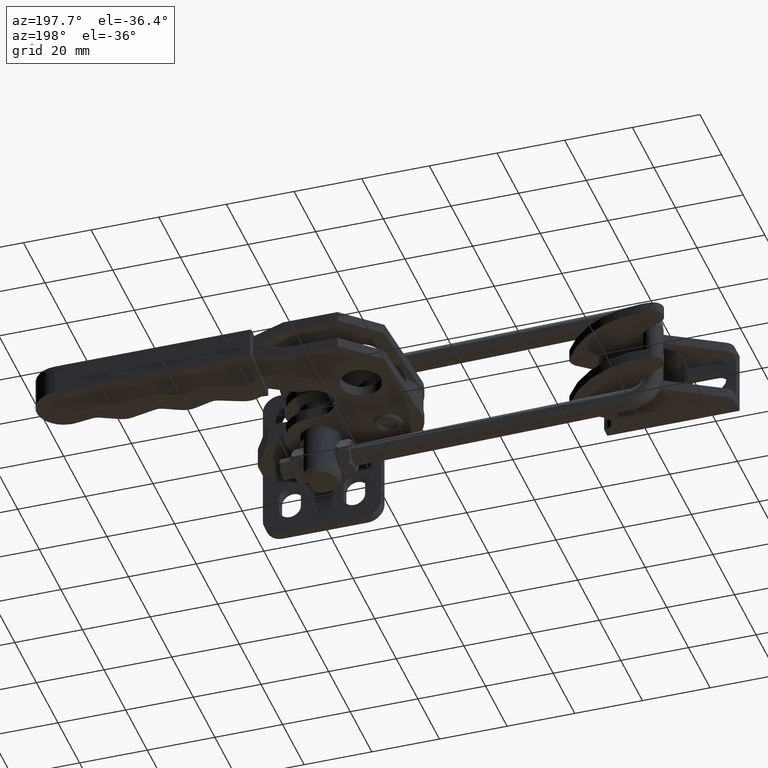
[diagram: clean part render]
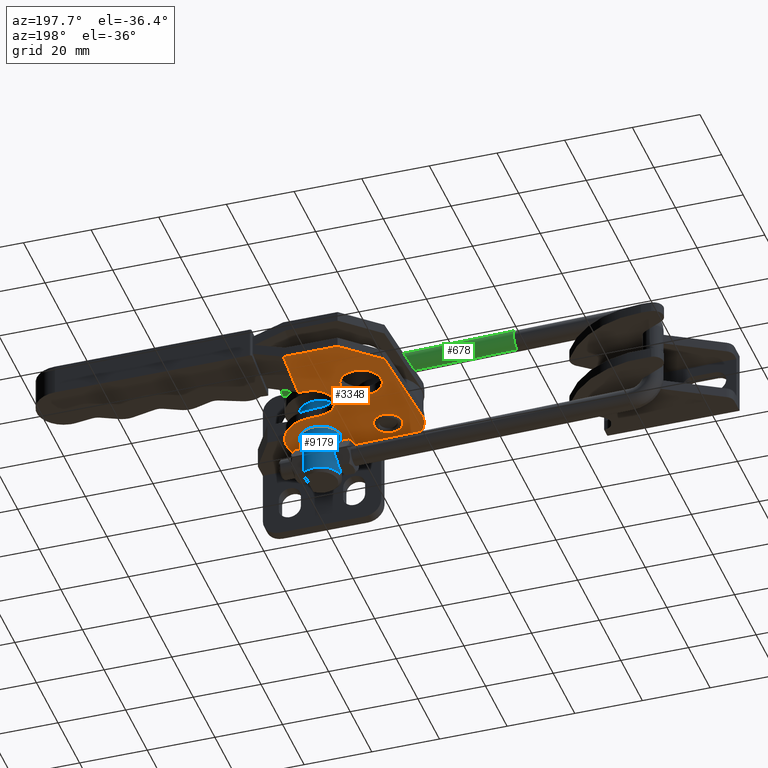
[diagram: same view with three faces highlighted in distinct colors, each labeled with its STEP entity id]
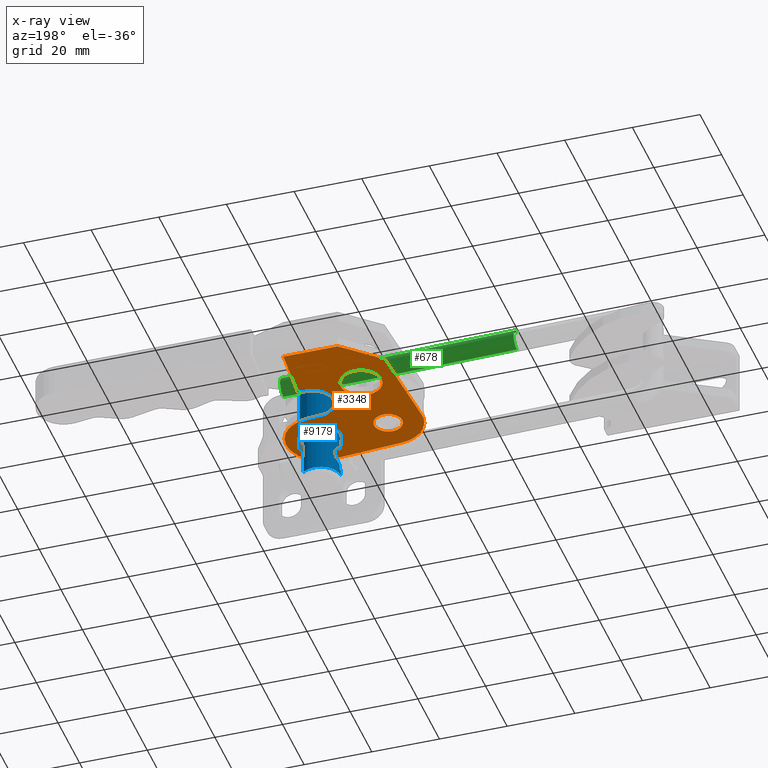
[diagram: x-ray of the same camera — body ghosted, the three highlighted faces saturated]
A machine part, auxiliary view with three faces highlighted in distinct colors.
The next image is the same camera in x-ray (body ghosted, the three faces saturated) — at least one of them is partly hidden behind the body in this view.
Their STEP definitions:

[orange] entity #3348 — the highlighted planar face has unit normal (-0, -0, 1).
#90 = DIRECTION ( 'NONE',  ( 1.000000000000000000, 0.0000000000000000000, 0.0000000000000000000 ) ) ;
#109 = EDGE_CURVE ( 'NONE', #5961, #9636, #665, .T. ) ;
#111 = AXIS2_PLACEMENT_3D ( 'NONE', #3884, #7044, #263 ) ;
#136 = EDGE_CURVE ( 'NONE', #8823, #1485, #8167, .T. ) ;
#139 = FACE_BOUND ( 'NONE', #1889, .T. ) ;
#263 = DIRECTION ( 'NONE',  ( 0.9975775685567006600, 0.06956288315259118200, 3.826595902890073400E-015 ) ) ;
#317 = DIRECTION ( 'NONE',  ( 0.9975775685567006600, 0.06956288315259139000, 3.903127820947813600E-015 ) ) ;
#550 = EDGE_CURVE ( 'NONE', #3615, #8410, #8880, .T. ) ;
#557 = DIRECTION ( 'NONE',  ( 0.9975775685567006600, 0.06956288315259139000, 0.0000000000000000000 ) ) ;
#584 = CARTESIAN_POINT ( 'NONE',  ( -40.62499338306440000, 59.01843283864303700, -6.000000000000619900 ) ) ;
#588 = CARTESIAN_POINT ( 'NONE',  ( -12.57801332633600900, 19.37342431990673600, -6.000000000000584400 ) ) ;
#645 = VECTOR ( 'NONE', #766, 1000.000000000000100 ) ;
#665 = CIRCLE ( 'NONE', #7178, 10.20000000000010200 ) ;
#752 = CIRCLE ( 'NONE', #7820, 4.150000000000001200 ) ;
#766 = DIRECTION ( 'NONE',  ( -0.9975315770320198900, 0.07021931944992977600, 4.455608541071312700E-017 ) ) ;
#783 = CARTESIAN_POINT ( 'NONE',  ( -47.68420013545501500, 40.13003086025399600, -6.000000000000651000 ) ) ;
#870 = EDGE_CURVE ( 'NONE', #5961, #5231, #6050, .T. ) ;
#885 = EDGE_CURVE ( 'NONE', #3882, #5231, #4031, .T. ) ;
#901 = VERTEX_POINT ( 'NONE', #584 ) ;
#1033 = EDGE_CURVE ( 'NONE', #901, #4184, #9133, .T. ) ;
#1049 = VERTEX_POINT ( 'NONE', #3193 ) ;
#1120 = CARTESIAN_POINT ( 'NONE',  ( -43.15470053837935200, 20.10000000000001900, -6.000000000000502700 ) ) ;
#1122 = EDGE_CURVE ( 'NONE', #8608, #1049, #4837, .T. ) ;
#1216 = EDGE_CURVE ( 'NONE', #5598, #3131, #5927, .T. ) ;
#1339 = EDGE_CURVE ( 'NONE', #4115, #7196, #8255, .T. ) ;
#1446 = DIRECTION ( 'NONE',  ( -0.0000000000000000000, -0.0000000000000000000, 1.000000000000000000 ) ) ;
#1484 = AXIS2_PLACEMENT_3D ( 'NONE', #6221, #1742, #6985 ) ;
#1485 = VERTEX_POINT ( 'NONE', #9359 ) ;
#1531 = CARTESIAN_POINT ( 'NONE',  ( -24.66659128503268100, 60.13124100057230900, -6.000000000000558700 ) ) ;
#1742 = DIRECTION ( 'NONE',  ( -3.830904862913346100E-015, -2.676290181485771800E-016, 1.000000000000000000 ) ) ;
#1840 = CARTESIAN_POINT ( 'NONE',  ( -22.75330452561445700, 18.66388291175029600, -6.000000000000584400 ) ) ;
#1859 = DIRECTION ( 'NONE',  ( -0.0000000000000000000, -0.0000000000000000000, 1.000000000000000000 ) ) ;
#1861 = VERTEX_POINT ( 'NONE', #6468 ) ;
#1889 = EDGE_LOOP ( 'NONE', ( #3510, #9360 ) ) ;
#1903 = FACE_OUTER_BOUND ( 'NONE', #9615, .T. ) ;
#1926 = VECTOR ( 'NONE', #6203, 1000.000000000000000 ) ;
#1992 = EDGE_CURVE ( 'NONE', #2532, #3882, #3881, .T. ) ;
#2011 = LINE ( 'NONE', #6602, #7965 ) ;
#2013 = CARTESIAN_POINT ( 'NONE',  ( -23.37411291605752300, 41.59624977678884500, -6.000000000000558700 ) ) ;
#2075 = DIRECTION ( 'NONE',  ( -3.911374865068741500E-018, -7.658596074387203500E-019, 1.000000000000000000 ) ) ;
#2360 = CARTESIAN_POINT ( 'NONE',  ( -22.03706746722521000, 28.83870499747700200, -6.000000000000584400 ) ) ;
#2393 = DIRECTION ( 'NONE',  ( -0.7380754324015291700, -0.6747182049458097000, -3.008070933900506400E-015 ) ) ;
#2448 = DIRECTION ( 'NONE',  ( 0.9975775685567006600, 0.06956288315259139000, 0.0000000000000000000 ) ) ;
#2470 = ORIENTED_EDGE ( 'NONE', *, *, #3842, .F. ) ;
#2517 = VECTOR ( 'NONE', #8866, 1000.000000000000000 ) ;
#2532 = VERTEX_POINT ( 'NONE', #6469 ) ;
#2564 = DIRECTION ( 'NONE',  ( 0.9975775685567007700, 0.06956288315259147300, 0.0000000000000000000 ) ) ;
#2606 = CARTESIAN_POINT ( 'NONE',  ( -43.87093759676842800, 9.925177914273556100, -6.000000000000649300 ) ) ;
#2749 = CARTESIAN_POINT ( 'NONE',  ( -25.75251658630407900, 35.26546526873277500, -6.000000000000572000 ) ) ;
#2872 = DIRECTION ( 'NONE',  ( -0.9975315770320206700, 0.07021931944991934000, -3.802655841842144100E-015 ) ) ;
#2879 = DIRECTION ( 'NONE',  ( -0.06997983071326563400, -0.9975484064913053800, -5.350589743702479500E-016 ) ) ;
#2989 = ORIENTED_EDGE ( 'NONE', *, *, #4706, .F. ) ;
#3131 = VERTEX_POINT ( 'NONE', #9674 ) ;
#3193 = CARTESIAN_POINT ( 'NONE',  ( -26.18436540092118700, 29.13064606998591100, -6.000000000000584400 ) ) ;
#3348 = ADVANCED_FACE ( 'NONE', ( #139, #5872, #3854, #1903 ), #6952, .F. ) ;
#3381 = CIRCLE ( 'NONE', #5381, 10.19999999999984700 ) ;
#3489 = DIRECTION ( 'NONE',  ( 0.9975775685567005400, 0.06956288315259187600, 3.807929581412538700E-015 ) ) ;
#3510 = ORIENTED_EDGE ( 'NONE', *, *, #3830, .T. ) ;
#3518 = ORIENTED_EDGE ( 'NONE', *, *, #5346, .T. ) ;
#3615 = VERTEX_POINT ( 'NONE', #6692 ) ;
#3650 = CARTESIAN_POINT ( 'NONE',  ( -43.15470053837921700, 20.10000000000000900, -6.000000000000643900 ) ) ;
#3760 = DIRECTION ( 'NONE',  ( -3.911374865068741500E-018, -7.658596074387203500E-019, 1.000000000000000000 ) ) ;
#3810 = DIRECTION ( 'NONE',  ( -0.9999999749334683700, 0.0002239041369209021400, -3.830844843641524400E-015 ) ) ;
#3830 = EDGE_CURVE ( 'NONE', #1485, #8823, #6931, .T. ) ;
#3837 = CARTESIAN_POINT ( 'NONE',  ( -39.00470053837935300, 20.10000000000001900, -6.000000000000502700 ) ) ;
#3842 = EDGE_CURVE ( 'NONE', #9636, #8608, #4892, .T. ) ;
#3854 = FACE_BOUND ( 'NONE', #7180, .T. ) ;
#3881 = LINE ( 'NONE', #8225, #1926 ) ;
#3882 = VERTEX_POINT ( 'NONE', #7807 ) ;
#3884 = CARTESIAN_POINT ( 'NONE',  ( -43.15470053837921700, 20.10000000000000900, -6.000000000000643900 ) ) ;
#3951 = CIRCLE ( 'NONE', #8079, 6.000000000000003600 ) ;
#4031 = CIRCLE ( 'NONE', #111, 10.19999999999984700 ) ;
#4074 = CARTESIAN_POINT ( 'NONE',  ( -49.54468612885799700, 50.86441657701523400, -6.000000000000656400 ) ) ;
#4115 = VERTEX_POINT ( 'NONE', #8792 ) ;
#4184 = VERTEX_POINT ( 'NONE', #8168 ) ;
#4368 = CARTESIAN_POINT ( 'NONE',  ( -50.75078617634021300, 57.57561046590563300, -6.000000000000659000 ) ) ;
#4404 = DIRECTION ( 'NONE',  ( 0.9975775685567006600, 0.06956288315259118200, 3.826595902890073400E-015 ) ) ;
#4453 = DIRECTION ( 'NONE',  ( -3.830904862913346100E-015, -2.676290181485772300E-016, 1.000000000000000000 ) ) ;
#4486 = VERTEX_POINT ( 'NONE', #5526 ) ;
#4675 = ORIENTED_EDGE ( 'NONE', *, *, #885, .F. ) ;
#4706 = EDGE_CURVE ( 'NONE', #1861, #7196, #2011, .T. ) ;
#4758 = EDGE_CURVE ( 'NONE', #4184, #4486, #5734, .T. ) ;
#4767 = DIRECTION ( 'NONE',  ( -3.830904862913346100E-015, -2.676290181485772300E-016, 1.000000000000000000 ) ) ;
#4837 = LINE ( 'NONE', #2360, #645 ) ;
#4892 = CIRCLE ( 'NONE', #9718, 10.20000000000010200 ) ;
#5006 = DIRECTION ( 'NONE',  ( -3.911374865068741500E-018, -7.658596074387203500E-019, 1.000000000000000000 ) ) ;
#5010 = AXIS2_PLACEMENT_3D ( 'NONE', #2749, #7994, #3489 ) ;
#5092 = AXIS2_PLACEMENT_3D ( 'NONE', #8532, #2075, #2448 ) ;
#5104 = EDGE_LOOP ( 'NONE', ( #5269, #3518 ) ) ;
#5200 = CARTESIAN_POINT ( 'NONE',  ( -41.69873472411481400, 40.54740815916954200, -6.000000000000627100 ) ) ;
#5231 = VERTEX_POINT ( 'NONE', #2606 ) ;
#5269 = ORIENTED_EDGE ( 'NONE', *, *, #1216, .T. ) ;
#5346 = EDGE_CURVE ( 'NONE', #3131, #5598, #3951, .T. ) ;
#5381 = AXIS2_PLACEMENT_3D ( 'NONE', #3650, #8932, #4404 ) ;
#5417 = ORIENTED_EDGE ( 'NONE', *, *, #1339, .T. ) ;
#5526 = CARTESIAN_POINT ( 'NONE',  ( -53.32969428459037400, 20.81379427327530300, -6.000000000000679500 ) ) ;
#5560 = VECTOR ( 'NONE', #2393, 1000.000000000000100 ) ;
#5564 = VECTOR ( 'NONE', #3810, 1000.000000000000100 ) ;
#5598 = VERTEX_POINT ( 'NONE', #8303 ) ;
#5711 = ORIENTED_EDGE ( 'NONE', *, *, #4758, .F. ) ;
#5724 = ORIENTED_EDGE ( 'NONE', *, *, #1122, .F. ) ;
#5728 = ORIENTED_EDGE ( 'NONE', *, *, #109, .F. ) ;
#5734 = LINE ( 'NONE', #4368, #9589 ) ;
#5872 = FACE_BOUND ( 'NONE', #5104, .T. ) ;
#5927 = CIRCLE ( 'NONE', #5092, 6.000000000000003600 ) ;
#5961 = VERTEX_POINT ( 'NONE', #8130 ) ;
#6050 = LINE ( 'NONE', #8148, #7794 ) ;
#6203 = DIRECTION ( 'NONE',  ( 0.06956288315259134800, -0.9975775685567007700, -4.919178523397262900E-019 ) ) ;
#6221 = CARTESIAN_POINT ( 'NONE',  ( -56.01753997961422700, 57.94508280144665200, -6.000000000000679500 ) ) ;
#6336 = CARTESIAN_POINT ( 'NONE',  ( -43.15470053837935200, 20.10000000000001900, -6.000000000000502700 ) ) ;
#6468 = CARTESIAN_POINT ( 'NONE',  ( -26.18032831769255600, 41.40056731535641900, -6.000000000000572000 ) ) ;
#6469 = CARTESIAN_POINT ( 'NONE',  ( -53.33865764381501200, 19.52814540777979200, -6.000000000000679500 ) ) ;
#6602 = CARTESIAN_POINT ( 'NONE',  ( -54.72506161063907400, 39.41009157766318800, -6.000000000000679500 ) ) ;
#6692 = CARTESIAN_POINT ( 'NONE',  ( -47.30470053837935000, 20.10000000000001900, -6.000000000000502700 ) ) ;
#6704 = AXIS2_PLACEMENT_3D ( 'NONE', #5200, #4453, #8989 ) ;
#6749 = EDGE_CURVE ( 'NONE', #4115, #901, #7563, .T. ) ;
#6836 = CARTESIAN_POINT ( 'NONE',  ( -56.01729888043105600, 59.02187923960703800, -6.000000000000679500 ) ) ;
#6931 = CIRCLE ( 'NONE', #7720, 6.000000000000003600 ) ;
#6936 = ORIENTED_EDGE ( 'NONE', *, *, #1033, .F. ) ;
#6952 = PLANE ( 'NONE',  #1484 ) ;
#6975 = ORIENTED_EDGE ( 'NONE', *, *, #1992, .F. ) ;
#6985 = DIRECTION ( 'NONE',  ( 0.9975775685567007700, 0.06956288315259134800, 3.840241804634849600E-015 ) ) ;
#7044 = DIRECTION ( 'NONE',  ( -3.830904862913346100E-015, -2.676290181485772300E-016, 1.000000000000000000 ) ) ;
#7071 = DIRECTION ( 'NONE',  ( -3.911374865068741500E-018, -7.658596074387203500E-019, 1.000000000000000000 ) ) ;
#7095 = DIRECTION ( 'NONE',  ( 1.000000000000000000, 0.0000000000000000000, 0.0000000000000000000 ) ) ;
#7178 = AXIS2_PLACEMENT_3D ( 'NONE', #9059, #3760, #8265 ) ;
#7180 = EDGE_LOOP ( 'NONE', ( #9239, #7184 ) ) ;
#7184 = ORIENTED_EDGE ( 'NONE', *, *, #550, .T. ) ;
#7196 = VERTEX_POINT ( 'NONE', #2013 ) ;
#7269 = ORIENTED_EDGE ( 'NONE', *, *, #6749, .F. ) ;
#7342 = DIRECTION ( 'NONE',  ( 0.9975775685567007700, 0.06956288315259134800, 3.840241804634849600E-015 ) ) ;
#7499 = AXIS2_PLACEMENT_3D ( 'NONE', #1120, #1446, #90 ) ;
#7563 = LINE ( 'NONE', #6836, #5564 ) ;
#7720 = AXIS2_PLACEMENT_3D ( 'NONE', #9345, #4767, #317 ) ;
#7794 = VECTOR ( 'NONE', #2872, 1000.000000000000000 ) ;
#7807 = CARTESIAN_POINT ( 'NONE',  ( -53.31946439506256000, 19.25290157722756800, -6.000000000000679500 ) ) ;
#7816 = CARTESIAN_POINT ( 'NONE',  ( -22.03706746722521000, 28.83870499747700200, -6.000000000000584400 ) ) ;
#7820 = AXIS2_PLACEMENT_3D ( 'NONE', #6336, #1859, #7095 ) ;
#7965 = VECTOR ( 'NONE', #7342, 1000.000000000000000 ) ;
#7994 = DIRECTION ( 'NONE',  ( -3.830904862913346100E-015, -2.676290181485772300E-016, 1.000000000000000000 ) ) ;
#8014 = EDGE_CURVE ( 'NONE', #8410, #3615, #752, .T. ) ;
#8079 = AXIS2_PLACEMENT_3D ( 'NONE', #9626, #5006, #557 ) ;
#8130 = CARTESIAN_POINT ( 'NONE',  ( -23.46954158400364700, 8.489060826023584000, -6.000000000000585300 ) ) ;
#8148 = CARTESIAN_POINT ( 'NONE',  ( -59.32124978962197300, 11.01277296635094800, -6.000000000000704300 ) ) ;
#8167 = CIRCLE ( 'NONE', #6704, 6.000000000000003600 ) ;
#8168 = CARTESIAN_POINT ( 'NONE',  ( -51.33649728118356800, 49.22641651465672700, -6.000000000000663500 ) ) ;
#8225 = CARTESIAN_POINT ( 'NONE',  ( -56.01753997961422700, 57.94508280144665200, -6.000000000000679500 ) ) ;
#8255 = LINE ( 'NONE', #1531, #2517 ) ;
#8265 = DIRECTION ( 'NONE',  ( 0.9975775685567007700, 0.06956288315259147300, 0.0000000000000000000 ) ) ;
#8303 = CARTESIAN_POINT ( 'NONE',  ( -16.76783911427424900, 19.08126021066584600, -6.000000000000584400 ) ) ;
#8410 = VERTEX_POINT ( 'NONE', #3837 ) ;
#8532 = CARTESIAN_POINT ( 'NONE',  ( -22.75330452561445700, 18.66388291175029600, -6.000000000000584400 ) ) ;
#8551 = CIRCLE ( 'NONE', #5010, 6.149999999999943500 ) ;
#8608 = VERTEX_POINT ( 'NONE', #7816 ) ;
#8792 = CARTESIAN_POINT ( 'NONE',  ( -24.58874278694210600, 59.01484225570386100, -6.000000000000558700 ) ) ;
#8823 = VERTEX_POINT ( 'NONE', #783 ) ;
#8866 = DIRECTION ( 'NONE',  ( 0.06956288315259134800, -0.9975775685567007700, -4.919178523397262900E-019 ) ) ;
#8880 = CIRCLE ( 'NONE', #7499, 4.150000000000001200 ) ;
#8891 = ORIENTED_EDGE ( 'NONE', *, *, #9354, .F. ) ;
#8932 = DIRECTION ( 'NONE',  ( -3.830904862913346100E-015, -2.676290181485772300E-016, 1.000000000000000000 ) ) ;
#8989 = DIRECTION ( 'NONE',  ( 0.9975775685567006600, 0.06956288315259139000, 3.903127820947813600E-015 ) ) ;
#9059 = CARTESIAN_POINT ( 'NONE',  ( -22.75330452561445700, 18.66388291175029600, -6.000000000000584400 ) ) ;
#9110 = ORIENTED_EDGE ( 'NONE', *, *, #9270, .T. ) ;
#9133 = LINE ( 'NONE', #4074, #5560 ) ;
#9213 = ORIENTED_EDGE ( 'NONE', *, *, #870, .T. ) ;
#9239 = ORIENTED_EDGE ( 'NONE', *, *, #8014, .T. ) ;
#9270 = EDGE_CURVE ( 'NONE', #1861, #1049, #8551, .T. ) ;
#9345 = CARTESIAN_POINT ( 'NONE',  ( -41.69873472411481400, 40.54740815916954200, -6.000000000000627100 ) ) ;
#9354 = EDGE_CURVE ( 'NONE', #4486, #2532, #3381, .T. ) ;
#9359 = CARTESIAN_POINT ( 'NONE',  ( -35.71326931277460700, 40.96478545808509600, -6.000000000000604000 ) ) ;
#9360 = ORIENTED_EDGE ( 'NONE', *, *, #136, .T. ) ;
#9589 = VECTOR ( 'NONE', #2879, 1000.000000000000100 ) ;
#9615 = EDGE_LOOP ( 'NONE', ( #9110, #5724, #2470, #5728, #9213, #4675, #6975, #8891, #5711, #6936, #7269, #5417, #2989 ) ) ;
#9626 = CARTESIAN_POINT ( 'NONE',  ( -22.75330452561445700, 18.66388291175029600, -6.000000000000584400 ) ) ;
#9636 = VERTEX_POINT ( 'NONE', #588 ) ;
#9674 = CARTESIAN_POINT ( 'NONE',  ( -28.73876993695466500, 18.24650561283474900, -6.000000000000584400 ) ) ;
#9718 = AXIS2_PLACEMENT_3D ( 'NONE', #1840, #7071, #2564 ) ;

[blue] entity #9179 — the highlighted cylindrical surface (edge-blend (fillet) strip) has radius 6 mm, axis along (-0, -0, 1).
#7 = VERTEX_POINT ( 'NONE', #4825 ) ;
#16 = DIRECTION ( 'NONE',  ( -0.02058254326521278400, -0.9997881570176433400, -2.891205793294676400E-016 ) ) ;
#42 = EDGE_CURVE ( 'NONE', #2114, #8886, #7578, .T. ) ;
#47 = ORIENTED_EDGE ( 'NONE', *, *, #4352, .T. ) ;
#137 = VERTEX_POINT ( 'NONE', #5264 ) ;
#177 = CARTESIAN_POINT ( 'NONE',  ( -22.75330452561465200, 18.66388291175007600, 9.919872981077089600 ) ) ;
#184 = CARTESIAN_POINT ( 'NONE',  ( -27.97551314054183200, 21.62150815981607000, -15.23337005052107600 ) ) ;
#218 = CARTESIAN_POINT ( 'NONE',  ( -28.53067503351389800, 20.28313891820984300, 16.84807621135263000 ) ) ;
#286 = CARTESIAN_POINT ( 'NONE',  ( -19.25227122585774700, 23.53653781785551000, -8.750000000000612800 ) ) ;
#293 = EDGE_CURVE ( 'NONE', #4925, #6559, #7005, .T. ) ;
#320 = CARTESIAN_POINT ( 'NONE',  ( -28.30828915554414500, 20.93387042247410400, 12.15804558808479500 ) ) ;
#345 = CARTESIAN_POINT ( 'NONE',  ( -28.33664920723994400, 20.86333766239055300, 16.41276888665086600 ) ) ;
#415 = CARTESIAN_POINT ( 'NONE',  ( -28.56208447569579800, 20.17107264567027200, 16.91313724639640600 ) ) ;
#474 = EDGE_CURVE ( 'NONE', #4358, #9285, #7465, .T. ) ;
#490 = DIRECTION ( 'NONE',  ( -3.911366218132177800E-018, -7.658619818455770700E-019, 1.000000000000000000 ) ) ;
#544 = CARTESIAN_POINT ( 'NONE',  ( -28.71145928351231900, 19.37736984406372200, -9.938322231437672000 ) ) ;
#566 = CARTESIAN_POINT ( 'NONE',  ( -28.75203346772051600, 18.78737817134133100, 18.58012701892147300 ) ) ;
#602 = CARTESIAN_POINT ( 'NONE',  ( -22.75330452561465200, 18.66388291175007600, 18.58012701892147300 ) ) ;
#604 = AXIS2_PLACEMENT_3D ( 'NONE', #1610, #4989, #4083 ) ;
#614 = CARTESIAN_POINT ( 'NONE',  ( -28.68613414002017900, 19.55916653520847200, 21.24999999999930700 ) ) ;
#642 = EDGE_LOOP ( 'NONE', ( #1121, #8599, #9526, #9249, #6270, #3781, #6988, #3299, #47, #7327, #5181, #3987, #4001, #1160, #7952, #1788, #6031, #7509, #2579, #8093, #8935, #5978, #7406, #9443, #3947, #4296 ) ) ;
#741 = DIRECTION ( 'NONE',  ( -3.911366218132177800E-018, -7.658619818455770700E-019, 1.000000000000000000 ) ) ;
#889 = CARTESIAN_POINT ( 'NONE',  ( -28.75203346772051200, 18.78737817134133100, -20.25000000000059000 ) ) ;
#902 = EDGE_CURVE ( 'NONE', #2197, #4480, #1844, .T. ) ;
#916 = DIRECTION ( 'NONE',  ( -8.095376221225097100E-015, 1.000000000000000000, -1.445602896647338700E-015 ) ) ;
#921 = CARTESIAN_POINT ( 'NONE',  ( -27.87864492948116900, 21.78366700516243200, -14.34967787659975100 ) ) ;
#1001 = EDGE_CURVE ( 'NONE', #6559, #2325, #5076, .T. ) ;
#1027 = DIRECTION ( 'NONE',  ( -4.510281037539698400E-017, -2.664535259100375700E-015, -1.000000000000000000 ) ) ;
#1070 = CARTESIAN_POINT ( 'NONE',  ( -28.18661546363772500, 21.21080109765690800, 12.49096918780960800 ) ) ;
#1091 = VECTOR ( 'NONE', #6239, 1000.000000000000000 ) ;
#1102 = CARTESIAN_POINT ( 'NONE',  ( -28.45691415536948900, 20.53025170346548500, 16.69208773683557100 ) ) ;
#1121 = ORIENTED_EDGE ( 'NONE', *, *, #293, .F. ) ;
#1160 = ORIENTED_EDGE ( 'NONE', *, *, #1904, .T. ) ;
#1210 = VERTEX_POINT ( 'NONE', #889 ) ;
#1287 = DIRECTION ( 'NONE',  ( -3.911366218132177800E-018, -7.658619818455770700E-019, 1.000000000000000000 ) ) ;
#1335 = CIRCLE ( 'NONE', #6884, 6.000000000000004400 ) ;
#1363 = DIRECTION ( 'NONE',  ( 0.0000000000000000000, -1.000000000000000000, 1.734723475976806100E-015 ) ) ;
#1371 = CARTESIAN_POINT ( 'NONE',  ( -16.75457558350878900, 18.54038765215882000, 21.24999999999930700 ) ) ;
#1396 = CARTESIAN_POINT ( 'NONE',  ( -28.68613414002017600, 19.55916653520848700, -18.50978854942939500 ) ) ;
#1448 = VERTEX_POINT ( 'NONE', #286 ) ;
#1449 = B_SPLINE_CURVE_WITH_KNOTS ( 'NONE', 3,
 ( #4347, #3560, #5874, #1396 ),
 .UNSPECIFIED., .F., .F.,
 ( 4, 4 ),
 ( 0.004354289543956653100, 0.004636271427438312100 ),
 .UNSPECIFIED. ) ;
#1486 = VECTOR ( 'NONE', #5651, 1000.000000000000000 ) ;
#1494 = VECTOR ( 'NONE', #1287, 1000.000000000000000 ) ;
#1610 = CARTESIAN_POINT ( 'NONE',  ( -22.75330452561465200, 18.66388291175007600, 8.749999999999385400 ) ) ;
#1659 = CARTESIAN_POINT ( 'NONE',  ( -28.57933611543608200, 20.12116649960782800, -16.95145594813587700 ) ) ;
#1689 = CARTESIAN_POINT ( 'NONE',  ( -27.94070026961157500, 21.67953951307806500, -13.45585914026406400 ) ) ;
#1695 = AXIS2_PLACEMENT_3D ( 'NONE', #3000, #8237, #3730 ) ;
#1760 = DIRECTION ( 'NONE',  ( -3.911366218132177800E-018, -7.658619818455770700E-019, 1.000000000000000000 ) ) ;
#1788 = ORIENTED_EDGE ( 'NONE', *, *, #7997, .T. ) ;
#1826 = DIRECTION ( 'NONE',  ( -3.911366218132177800E-018, -7.658619818455770700E-019, 1.000000000000000000 ) ) ;
#1842 = CARTESIAN_POINT ( 'NONE',  ( -28.07327185561293700, 21.43925677651230200, 12.86510755839137900 ) ) ;
#1844 = LINE ( 'NONE', #614, #9668 ) ;
#1868 = CARTESIAN_POINT ( 'NONE',  ( -28.53067503351389800, 20.28313891820984300, 16.84807621135263000 ) ) ;
#1904 = EDGE_CURVE ( 'NONE', #2114, #7287, #9109, .T. ) ;
#1909 = CARTESIAN_POINT ( 'NONE',  ( -28.68613414002011200, 19.55916653520892000, 21.24999999999930700 ) ) ;
#1999 = LINE ( 'NONE', #8015, #5484 ) ;
#2105 = CARTESIAN_POINT ( 'NONE',  ( -28.64339202699839100, 19.81370452822919900, -11.42870755286425500 ) ) ;
#2114 = VERTEX_POINT ( 'NONE', #6297 ) ;
#2197 = VERTEX_POINT ( 'NONE', #7028 ) ;
#2325 = VERTEX_POINT ( 'NONE', #4165 ) ;
#2380 = CARTESIAN_POINT ( 'NONE',  ( -28.64283628281394900, 19.84609103906690200, -17.07197268134911300 ) ) ;
#2388 = EDGE_CURVE ( 'NONE', #2325, #3371, #7075, .T. ) ;
#2407 = CARTESIAN_POINT ( 'NONE',  ( -28.43066882280881200, 20.60846491494058700, -16.63374492886589800 ) ) ;
#2434 = CARTESIAN_POINT ( 'NONE',  ( -28.13199440975957100, 21.32679733844279500, -12.64543933788603300 ) ) ;
#2463 = CARTESIAN_POINT ( 'NONE',  ( -28.68613414002017600, 19.55916653520848700, -18.50978854942939500 ) ) ;
#2539 = CARTESIAN_POINT ( 'NONE',  ( -28.64283628281388500, 19.84609103906727200, 11.42802731865105200 ) ) ;
#2565 = CARTESIAN_POINT ( 'NONE',  ( -27.92643524757715000, 21.70376540594341800, 13.54942132288805500 ) ) ;
#2571 = EDGE_CURVE ( 'NONE', #4480, #8886, #6025, .T. ) ;
#2579 = ORIENTED_EDGE ( 'NONE', *, *, #474, .T. ) ;
#2609 = EDGE_CURVE ( 'NONE', #4657, #3060, #5158, .T. ) ;
#2632 = CARTESIAN_POINT ( 'NONE',  ( -28.68613414002010800, 19.55916653520893100, 17.14870660812770700 ) ) ;
#2699 = CARTESIAN_POINT ( 'NONE',  ( -28.75203346772051600, 18.78737817134133100, 21.24999999999930700 ) ) ;
#2750 = CARTESIAN_POINT ( 'NONE',  ( -19.25227122585774700, 23.53653781785551000, 21.24999999999930700 ) ) ;
#2796 = CARTESIAN_POINT ( 'NONE',  ( -28.53067503351395100, 20.28313891820965500, -11.65192378864729000 ) ) ;
#2832 = CARTESIAN_POINT ( 'NONE',  ( -28.68613414002017200, 19.55916653520852600, -11.35129339187212200 ) ) ;
#2908 = EDGE_CURVE ( 'NONE', #5107, #1210, #6129, .T. ) ;
#3000 = CARTESIAN_POINT ( 'NONE',  ( -22.75330452561465200, 18.66388291175007600, -18.58012701892287700 ) ) ;
#3060 = VERTEX_POINT ( 'NONE', #9558 ) ;
#3081 = CARTESIAN_POINT ( 'NONE',  ( -16.75457558350878900, 18.54038765215882000, -8.750000000000611100 ) ) ;
#3150 = CARTESIAN_POINT ( 'NONE',  ( -28.30828915554422300, 20.93387042247390500, -16.34195441191543100 ) ) ;
#3167 = AXIS2_PLACEMENT_3D ( 'NONE', #6273, #1027, #5500 ) ;
#3183 = CARTESIAN_POINT ( 'NONE',  ( -28.33664920723997900, 20.86333766239044600, -12.08723111334905600 ) ) ;
#3217 = DIRECTION ( 'NONE',  ( -3.911366218132177800E-018, -7.658619818455770700E-019, 1.000000000000000000 ) ) ;
#3242 = EDGE_CURVE ( 'NONE', #3371, #7623, #5266, .T. ) ;
#3262 = CARTESIAN_POINT ( 'NONE',  ( -19.25227122585774700, 23.53653781785550300, -20.25000000000059000 ) ) ;
#3299 = ORIENTED_EDGE ( 'NONE', *, *, #3762, .T. ) ;
#3307 = CARTESIAN_POINT ( 'NONE',  ( -27.88237764915052700, 21.77770182674698400, 14.45728930608911600 ) ) ;
#3312 = VERTEX_POINT ( 'NONE', #5380 ) ;
#3370 = CARTESIAN_POINT ( 'NONE',  ( -28.64339202699832800, 19.81370452822954000, 17.07129244713565100 ) ) ;
#3371 = VERTEX_POINT ( 'NONE', #4713 ) ;
#3432 = CARTESIAN_POINT ( 'NONE',  ( -28.68613414002010800, 19.55916653520893100, 18.50978854942795200 ) ) ;
#3452 = LINE ( 'NONE', #2750, #1494 ) ;
#3462 = EDGE_CURVE ( 'NONE', #1210, #9127, #9197, .T. ) ;
#3516 = EDGE_CURVE ( 'NONE', #4834, #2197, #4559, .T. ) ;
#3517 = CARTESIAN_POINT ( 'NONE',  ( -28.68613414002010800, 19.55916653520893100, 17.14870660812770700 ) ) ;
#3521 = CARTESIAN_POINT ( 'NONE',  ( -28.68613414002017900, 19.55916653520848700, -9.990211450571974800 ) ) ;
#3543 = B_SPLINE_CURVE_WITH_KNOTS ( 'NONE', 3,
 ( #7030, #7766, #4015, #9333 ),
 .UNSPECIFIED., .F., .F.,
 ( 4, 4 ),
 ( 0.004354289543957536900, 0.004636271427439236800 ),
 .UNSPECIFIED. ) ;
#3560 = CARTESIAN_POINT ( 'NONE',  ( -28.71137430973334000, 19.37818661733843600, -18.56151507692291600 ) ) ;
#3609 = B_SPLINE_CURVE_WITH_KNOTS ( 'NONE', 3,
 ( #3432, #7937, #8678, #4188 ),
 .UNSPECIFIED., .F., .F.,
 ( 4, 4 ),
 ( 0.002592246231158424700, 0.002876892714968341700 ),
 .UNSPECIFIED. ) ;
#3672 = LINE ( 'NONE', #1909, #1486 ) ;
#3685 = CARTESIAN_POINT ( 'NONE',  ( -28.68613414002010800, 19.55916653520893100, 18.50978854942795200 ) ) ;
#3730 = DIRECTION ( 'NONE',  ( -3.469446951953613000E-015, 1.000000000000000000, -2.891205793294677400E-015 ) ) ;
#3739 = CARTESIAN_POINT ( 'NONE',  ( -22.75330452561465200, 18.66388291175007600, 20.24999999999936100 ) ) ;
#3762 = EDGE_CURVE ( 'NONE', #6880, #5993, #5861, .T. ) ;
#3781 = ORIENTED_EDGE ( 'NONE', *, *, #5521, .F. ) ;
#3879 = CARTESIAN_POINT ( 'NONE',  ( -28.18661546363778900, 21.21080109765676600, -16.00903081219060600 ) ) ;
#3913 = CARTESIAN_POINT ( 'NONE',  ( -28.45691415536953500, 20.53025170346532800, -11.80791226316434900 ) ) ;
#3947 = ORIENTED_EDGE ( 'NONE', *, *, #2388, .F. ) ;
#3978 = EDGE_CURVE ( 'NONE', #4232, #3060, #3609, .T. ) ;
#3987 = ORIENTED_EDGE ( 'NONE', *, *, #2571, .T. ) ;
#4001 = ORIENTED_EDGE ( 'NONE', *, *, #42, .F. ) ;
#4015 = CARTESIAN_POINT ( 'NONE',  ( -28.69964909908398500, 19.46960614644422400, 9.962053516176084100 ) ) ;
#4028 = CARTESIAN_POINT ( 'NONE',  ( -28.46961705222230400, 20.49154562226521400, 11.78046552055749200 ) ) ;
#4060 = CARTESIAN_POINT ( 'NONE',  ( -27.99577016985902500, 21.58586376086742600, 15.33164169178091100 ) ) ;
#4083 = DIRECTION ( 'NONE',  ( 0.9997881570176433400, -0.02058254326520931500, 0.0000000000000000000 ) ) ;
#4129 = CARTESIAN_POINT ( 'NONE',  ( -28.59114848025474800, 20.05485325110019400, 16.97083969456294400 ) ) ;
#4137 = EDGE_CURVE ( 'NONE', #7, #6880, #1449, .T. ) ;
#4156 = DIRECTION ( 'NONE',  ( -3.911366218132177800E-018, -7.658619818455770700E-019, 1.000000000000000000 ) ) ;
#4165 = CARTESIAN_POINT ( 'NONE',  ( -19.25227122585774700, 23.53653781785551000, 8.749999999999385400 ) ) ;
#4188 = CARTESIAN_POINT ( 'NONE',  ( -28.72109531960239400, 19.28474766285685100, 18.58012701892147300 ) ) ;
#4232 = VERTEX_POINT ( 'NONE', #3685 ) ;
#4272 = VERTEX_POINT ( 'NONE', #9021 ) ;
#4291 = CARTESIAN_POINT ( 'NONE',  ( -28.56208447569584800, 20.17107264567005100, -11.58686275360350700 ) ) ;
#4296 = ORIENTED_EDGE ( 'NONE', *, *, #1001, .F. ) ;
#4347 = CARTESIAN_POINT ( 'NONE',  ( -28.72109531960356700, 19.28474766286838000, -18.58012701892288000 ) ) ;
#4352 = EDGE_CURVE ( 'NONE', #5993, #4834, #9785, .T. ) ;
#4358 = VERTEX_POINT ( 'NONE', #218 ) ;
#4416 = AXIS2_PLACEMENT_3D ( 'NONE', #7001, #1760, #6272 ) ;
#4471 = DIRECTION ( 'NONE',  ( 9.073993480310691700E-018, 2.515382533872881800E-016, -1.000000000000000000 ) ) ;
#4480 = VERTEX_POINT ( 'NONE', #4756 ) ;
#4500 = DIRECTION ( 'NONE',  ( -0.9997881570176433400, 0.02058254326520930800, 0.0000000000000000000 ) ) ;
#4512 = VECTOR ( 'NONE', #9096, 1000.000000000000000 ) ;
#4546 = CARTESIAN_POINT ( 'NONE',  ( -28.75203346772051600, 18.78737817134133100, 21.24999999999930700 ) ) ;
#4559 = B_SPLINE_CURVE_WITH_KNOTS ( 'NONE', 3,
 ( #2796, #4291, #6590, #2105, #7331, #2832 ),
 .UNSPECIFIED., .F., .F.,
 ( 4, 2, 4 ),
 ( 0.003191468445177450300, 0.003591122017877526300, 0.003990775590577601800 ),
 .UNSPECIFIED. ) ;
#4598 = CARTESIAN_POINT ( 'NONE',  ( -28.68613414002018300, 19.55916653520847200, -17.14870660812917400 ) ) ;
#4631 = CARTESIAN_POINT ( 'NONE',  ( -28.07327185561298700, 21.43925677651220600, -15.63489244160881600 ) ) ;
#4657 = VERTEX_POINT ( 'NONE', #566 ) ;
#4662 = CARTESIAN_POINT ( 'NONE',  ( -28.53067503351395100, 20.28313891820965500, -11.65192378864729000 ) ) ;
#4713 = CARTESIAN_POINT ( 'NONE',  ( -19.25227122585774000, 23.53653781785588700, 20.24999999999918600 ) ) ;
#4746 = CARTESIAN_POINT ( 'NONE',  ( -19.25227122585774700, 23.53653781785551000, 21.24999999999930700 ) ) ;
#4756 = CARTESIAN_POINT ( 'NONE',  ( -28.68613414002017900, 19.55916653520848700, -9.990211450571974800 ) ) ;
#4768 = CARTESIAN_POINT ( 'NONE',  ( -28.35000351126774000, 20.82971415960322000, 12.05498489671684900 ) ) ;
#4800 = CARTESIAN_POINT ( 'NONE',  ( -28.21430757063841500, 21.15843735654269200, 16.09703050887168300 ) ) ;
#4825 = CARTESIAN_POINT ( 'NONE',  ( -28.72109531960356700, 19.28474766286838000, -18.58012701892288000 ) ) ;
#4834 = VERTEX_POINT ( 'NONE', #9009 ) ;
#4925 = VERTEX_POINT ( 'NONE', #3081 ) ;
#4969 = VECTOR ( 'NONE', #7326, 1000.000000000000000 ) ;
#4989 = DIRECTION ( 'NONE',  ( -3.911366218132177800E-018, -7.658619818455770700E-019, 1.000000000000000000 ) ) ;
#5076 = CIRCLE ( 'NONE', #604, 6.000000000000004400 ) ;
#5107 = VERTEX_POINT ( 'NONE', #3262 ) ;
#5146 = CYLINDRICAL_SURFACE ( 'NONE', #4416, 6.000000000000004400 ) ;
#5158 = CIRCLE ( 'NONE', #9477, 6.000000000000003600 ) ;
#5181 = ORIENTED_EDGE ( 'NONE', *, *, #902, .T. ) ;
#5263 = CARTESIAN_POINT ( 'NONE',  ( -28.75203346772051600, 18.78737817134133100, -18.58012701892287700 ) ) ;
#5264 = CARTESIAN_POINT ( 'NONE',  ( -28.72109531960352800, 19.28474766286879900, 9.919872981077089600 ) ) ;
#5266 = CIRCLE ( 'NONE', #6728, 6.000000000000007100 ) ;
#5313 = AXIS2_PLACEMENT_3D ( 'NONE', #177, #5391, #916 ) ;
#5359 = EDGE_CURVE ( 'NONE', #9285, #4232, #1999, .T. ) ;
#5380 = CARTESIAN_POINT ( 'NONE',  ( -28.68613414002010800, 19.55916653520893100, 9.990211450570614100 ) ) ;
#5391 = DIRECTION ( 'NONE',  ( 2.428612866367529900E-017, 1.498801083243961300E-015, 1.000000000000000000 ) ) ;
#5396 = CARTESIAN_POINT ( 'NONE',  ( -27.92643524757718200, 21.70376540594339300, -14.95057867711210300 ) ) ;
#5484 = VECTOR ( 'NONE', #5787, 1000.000000000000000 ) ;
#5500 = DIRECTION ( 'NONE',  ( 0.0000000000000000000, -1.000000000000000000, 2.602085213965209100E-015 ) ) ;
#5521 = EDGE_CURVE ( 'NONE', #7, #9127, #8304, .T. ) ;
#5541 = CARTESIAN_POINT ( 'NONE',  ( -28.22675124372072400, 21.12398017845514900, 12.37569806082973400 ) ) ;
#5573 = CARTESIAN_POINT ( 'NONE',  ( -28.37745175812103000, 20.75755508819322200, 16.51073760393274600 ) ) ;
#5651 = DIRECTION ( 'NONE',  ( -3.911366218132177800E-018, -7.658619818455770700E-019, 1.000000000000000000 ) ) ;
#5742 = EDGE_CURVE ( 'NONE', #4272, #4358, #5897, .T. ) ;
#5765 = AXIS2_PLACEMENT_3D ( 'NONE', #6296, #1826, #7058 ) ;
#5787 = DIRECTION ( 'NONE',  ( -3.911366218132177800E-018, -7.658619818455770700E-019, 1.000000000000000000 ) ) ;
#5838 = DIRECTION ( 'NONE',  ( -2.428612866367529900E-017, -1.498801083243961300E-015, -1.000000000000000000 ) ) ;
#5861 = LINE ( 'NONE', #6976, #7391 ) ;
#5874 = CARTESIAN_POINT ( 'NONE',  ( -28.69964909908404500, 19.46960614644378800, -18.53794648382390900 ) ) ;
#5897 = B_SPLINE_CURVE_WITH_KNOTS ( 'NONE', 3,
 ( #7776, #2539, #8515, #4028, #9346, #4768, #320, #5541, #1070, #6311, #1842, #7072, #2565, #7809, #3307, #8549, #4060, #9390, #4800, #345, #5573, #1102, #6345, #1868 ),
 .UNSPECIFIED., .F., .F.,
 ( 4, 2, 2, 2, 2, 2, 2, 2, 2, 2, 2, 4 ),
 ( 0.01508462226157597300, 0.01598131736600016600, 0.01642966491821225600, 0.01687801247042435000, 0.01732636002263644400, 0.01777470757484853800, 0.01867140267927273200, 0.01956809778369693000, 0.02046479288812112800, 0.02136148799254532200, 0.02180983554475741600, 0.02225818309696951000 ),
 .UNSPECIFIED. ) ;
#5978 = ORIENTED_EDGE ( 'NONE', *, *, #2609, .F. ) ;
#5993 = VERTEX_POINT ( 'NONE', #8297 ) ;
#6010 = EDGE_CURVE ( 'NONE', #4657, #7623, #8500, .T. ) ;
#6025 = B_SPLINE_CURVE_WITH_KNOTS ( 'NONE', 3,
 ( #3521, #8036, #544, #8790 ),
 .UNSPECIFIED., .F., .F.,
 ( 4, 4 ),
 ( 0.002592246231158769500, 0.002876892714957079500 ),
 .UNSPECIFIED. ) ;
#6031 = ORIENTED_EDGE ( 'NONE', *, *, #7132, .T. ) ;
#6125 = FACE_OUTER_BOUND ( 'NONE', #642, .T. ) ;
#6129 = CIRCLE ( 'NONE', #5765, 6.000000000000000900 ) ;
#6174 = CARTESIAN_POINT ( 'NONE',  ( -27.88237764915053100, 21.77770182674698800, -14.04271069391096900 ) ) ;
#6216 = CARTESIAN_POINT ( 'NONE',  ( -28.75203346772051900, 18.78737817134133100, 20.24999999999936100 ) ) ;
#6239 = DIRECTION ( 'NONE',  ( -3.911366218132177800E-018, -7.658619818455770700E-019, 1.000000000000000000 ) ) ;
#6270 = ORIENTED_EDGE ( 'NONE', *, *, #3462, .T. ) ;
#6272 = DIRECTION ( 'NONE',  ( -0.9997881570176433400, 0.02058254326520931500, 0.0000000000000000000 ) ) ;
#6273 = CARTESIAN_POINT ( 'NONE',  ( -22.75330452561465200, 18.66388291175007600, -9.919872981078489400 ) ) ;
#6296 = CARTESIAN_POINT ( 'NONE',  ( -22.75330452561465200, 18.66388291175007600, -20.25000000000059000 ) ) ;
#6297 = CARTESIAN_POINT ( 'NONE',  ( -28.75203346772051600, 18.78737817134133100, -9.919872981078489400 ) ) ;
#6311 = CARTESIAN_POINT ( 'NONE',  ( -28.11001630881686400, 21.36819407480927400, 12.73505673773678400 ) ) ;
#6345 = CARTESIAN_POINT ( 'NONE',  ( -28.49543865010448200, 20.40885939817255200, 16.77508810915903200 ) ) ;
#6420 = EDGE_CURVE ( 'NONE', #5107, #1448, #3452, .T. ) ;
#6559 = VERTEX_POINT ( 'NONE', #7379 ) ;
#6590 = CARTESIAN_POINT ( 'NONE',  ( -28.59114848025481200, 20.05485325109993900, -11.52916030543697100 ) ) ;
#6728 = AXIS2_PLACEMENT_3D ( 'NONE', #3739, #9040, #4500 ) ;
#6880 = VERTEX_POINT ( 'NONE', #2463 ) ;
#6884 = AXIS2_PLACEMENT_3D ( 'NONE', #9011, #4471, #16 ) ;
#6905 = CARTESIAN_POINT ( 'NONE',  ( -28.46961705222239300, 20.49154562226493700, -16.71953447944270700 ) ) ;
#6932 = CARTESIAN_POINT ( 'NONE',  ( -27.99577016985902800, 21.58586376086740800, -13.16835830821908700 ) ) ;
#6976 = CARTESIAN_POINT ( 'NONE',  ( -28.68613414002017900, 19.55916653520847200, 21.24999999999930700 ) ) ;
#6988 = ORIENTED_EDGE ( 'NONE', *, *, #4137, .T. ) ;
#7001 = CARTESIAN_POINT ( 'NONE',  ( -22.75330452561465200, 18.66388291175007600, 21.24999999999930700 ) ) ;
#7005 = LINE ( 'NONE', #1371, #4969 ) ;
#7028 = CARTESIAN_POINT ( 'NONE',  ( -28.68613414002017200, 19.55916653520852600, -11.35129339187212200 ) ) ;
#7030 = CARTESIAN_POINT ( 'NONE',  ( -28.72109531960352800, 19.28474766286879900, 9.919872981077089600 ) ) ;
#7058 = DIRECTION ( 'NONE',  ( -0.9997881570176433400, 0.02058254326520932800, 0.0000000000000000000 ) ) ;
#7072 = CARTESIAN_POINT ( 'NONE',  ( -27.97551314054180000, 21.62150815981611600, 13.26662994947909300 ) ) ;
#7075 = LINE ( 'NONE', #4746, #1091 ) ;
#7086 = VECTOR ( 'NONE', #4156, 1000.000000000000000 ) ;
#7132 = EDGE_CURVE ( 'NONE', #3312, #4272, #3672, .T. ) ;
#7162 = VECTOR ( 'NONE', #490, 1000.000000000000000 ) ;
#7287 = VERTEX_POINT ( 'NONE', #9671 ) ;
#7326 = DIRECTION ( 'NONE',  ( -3.911366218132177800E-018, -7.658619818455770700E-019, 1.000000000000000000 ) ) ;
#7327 = ORIENTED_EDGE ( 'NONE', *, *, #3516, .T. ) ;
#7331 = CARTESIAN_POINT ( 'NONE',  ( -28.66666944287332100, 19.68815440971268800, -11.38578938640940000 ) ) ;
#7379 = CARTESIAN_POINT ( 'NONE',  ( -16.75457558350878900, 18.54038765215882000, 8.749999999999385400 ) ) ;
#7391 = VECTOR ( 'NONE', #3217, 1000.000000000000000 ) ;
#7406 = ORIENTED_EDGE ( 'NONE', *, *, #6010, .T. ) ;
#7465 = B_SPLINE_CURVE_WITH_KNOTS ( 'NONE', 3,
 ( #8621, #415, #4129, #3370, #7876, #2632 ),
 .UNSPECIFIED., .F., .F.,
 ( 4, 2, 4 ),
 ( 0.003191468445177234300, 0.003591122017877207100, 0.003990775590577179400 ),
 .UNSPECIFIED. ) ;
#7509 = ORIENTED_EDGE ( 'NONE', *, *, #5742, .T. ) ;
#7578 = CIRCLE ( 'NONE', #3167, 6.000000000000003600 ) ;
#7623 = VERTEX_POINT ( 'NONE', #6216 ) ;
#7635 = CARTESIAN_POINT ( 'NONE',  ( -28.35000351126782900, 20.82971415960300700, -16.44501510328336700 ) ) ;
#7667 = CARTESIAN_POINT ( 'NONE',  ( -28.21430757063844300, 21.15843735654262000, -12.40296949112825500 ) ) ;
#7736 = CIRCLE ( 'NONE', #5313, 6.000000000000001800 ) ;
#7766 = CARTESIAN_POINT ( 'NONE',  ( -28.71137430973329100, 19.37818661733886200, 9.938484923077066200 ) ) ;
#7776 = CARTESIAN_POINT ( 'NONE',  ( -28.68613414002010800, 19.55916653520892000, 11.35129339187085800 ) ) ;
#7809 = CARTESIAN_POINT ( 'NONE',  ( -27.87864492948117200, 21.78366700516244200, 14.15032212340035600 ) ) ;
#7876 = CARTESIAN_POINT ( 'NONE',  ( -28.66666944287325300, 19.68815440971306400, 17.11421061359050800 ) ) ;
#7937 = CARTESIAN_POINT ( 'NONE',  ( -28.69976607008819900, 19.46883100768417000, 18.53819018873102600 ) ) ;
#7952 = ORIENTED_EDGE ( 'NONE', *, *, #9459, .F. ) ;
#7997 = EDGE_CURVE ( 'NONE', #137, #3312, #3543, .T. ) ;
#8015 = CARTESIAN_POINT ( 'NONE',  ( -28.68613414002011200, 19.55916653520892000, 21.24999999999930700 ) ) ;
#8036 = CARTESIAN_POINT ( 'NONE',  ( -28.69976607008770500, 19.46883100768740200, -9.961809811270072100 ) ) ;
#8093 = ORIENTED_EDGE ( 'NONE', *, *, #5359, .T. ) ;
#8237 = DIRECTION ( 'NONE',  ( 4.510281037539698400E-017, 2.664535259100375700E-015, 1.000000000000000000 ) ) ;
#8287 = EDGE_CURVE ( 'NONE', #1448, #4925, #1335, .T. ) ;
#8297 = CARTESIAN_POINT ( 'NONE',  ( -28.68613414002018300, 19.55916653520847200, -17.14870660812917400 ) ) ;
#8304 = CIRCLE ( 'NONE', #1695, 6.000000000000001800 ) ;
#8389 = CARTESIAN_POINT ( 'NONE',  ( -28.22675124372081300, 21.12398017845499600, -16.12430193917047900 ) ) ;
#8414 = CARTESIAN_POINT ( 'NONE',  ( -28.37745175812107200, 20.75755508819310100, -11.98926239606717900 ) ) ;
#8430 = CARTESIAN_POINT ( 'NONE',  ( -28.72109531960356000, 19.28474766286838400, -9.919872981078492900 ) ) ;
#8500 = LINE ( 'NONE', #4546, #4512 ) ;
#8515 = CARTESIAN_POINT ( 'NONE',  ( -28.57933611543599600, 20.12116649960815800, 11.54854405186431000 ) ) ;
#8549 = CARTESIAN_POINT ( 'NONE',  ( -27.94070026961159300, 21.67953951307806900, 15.04414085973596300 ) ) ;
#8599 = ORIENTED_EDGE ( 'NONE', *, *, #8287, .F. ) ;
#8621 = CARTESIAN_POINT ( 'NONE',  ( -28.53067503351389800, 20.28313891820984300, 16.84807621135263000 ) ) ;
#8678 = CARTESIAN_POINT ( 'NONE',  ( -28.71145928351322100, 19.37736984405670900, 18.56167776856419800 ) ) ;
#8790 = CARTESIAN_POINT ( 'NONE',  ( -28.72109531960356000, 19.28474766286838400, -9.919872981078492900 ) ) ;
#8886 = VERTEX_POINT ( 'NONE', #8430 ) ;
#8935 = ORIENTED_EDGE ( 'NONE', *, *, #3978, .T. ) ;
#9009 = CARTESIAN_POINT ( 'NONE',  ( -28.53067503351395100, 20.28313891820965500, -11.65192378864729000 ) ) ;
#9011 = CARTESIAN_POINT ( 'NONE',  ( -22.75330452561465200, 18.66388291175007600, -8.750000000000611100 ) ) ;
#9021 = CARTESIAN_POINT ( 'NONE',  ( -28.68613414002010800, 19.55916653520892000, 11.35129339187085800 ) ) ;
#9040 = DIRECTION ( 'NONE',  ( -3.911366218132177800E-018, -7.658619818455770700E-019, 1.000000000000000000 ) ) ;
#9096 = DIRECTION ( 'NONE',  ( -3.911366218132177800E-018, -7.658619818455770700E-019, 1.000000000000000000 ) ) ;
#9109 = LINE ( 'NONE', #9225, #7086 ) ;
#9127 = VERTEX_POINT ( 'NONE', #5263 ) ;
#9179 = ADVANCED_FACE ( 'NONE', ( #6125 ), #5146, .T. ) ;
#9188 = CARTESIAN_POINT ( 'NONE',  ( -28.11001630881691300, 21.36819407480916800, -15.76494326226341900 ) ) ;
#9197 = LINE ( 'NONE', #2699, #7162 ) ;
#9223 = CARTESIAN_POINT ( 'NONE',  ( -28.49543865010453200, 20.40885939817237800, -11.72491189084088400 ) ) ;
#9225 = CARTESIAN_POINT ( 'NONE',  ( -28.75203346772051600, 18.78737817134133100, 21.24999999999930700 ) ) ;
#9249 = ORIENTED_EDGE ( 'NONE', *, *, #2908, .T. ) ;
#9285 = VERTEX_POINT ( 'NONE', #3517 ) ;
#9333 = CARTESIAN_POINT ( 'NONE',  ( -28.68613414002010800, 19.55916653520893100, 9.990211450570614100 ) ) ;
#9346 = CARTESIAN_POINT ( 'NONE',  ( -28.43066882280872300, 20.60846491494084600, 11.86625507113431200 ) ) ;
#9390 = CARTESIAN_POINT ( 'NONE',  ( -28.13199440975956700, 21.32679733844283700, 15.85456066211393300 ) ) ;
#9443 = ORIENTED_EDGE ( 'NONE', *, *, #3242, .F. ) ;
#9459 = EDGE_CURVE ( 'NONE', #137, #7287, #7736, .T. ) ;
#9477 = AXIS2_PLACEMENT_3D ( 'NONE', #602, #5838, #1363 ) ;
#9526 = ORIENTED_EDGE ( 'NONE', *, *, #6420, .F. ) ;
#9558 = CARTESIAN_POINT ( 'NONE',  ( -28.72109531960239400, 19.28474766285685100, 18.58012701892147300 ) ) ;
#9668 = VECTOR ( 'NONE', #741, 1000.000000000000000 ) ;
#9671 = CARTESIAN_POINT ( 'NONE',  ( -28.75203346772051600, 18.78737817134133100, 9.919872981077089600 ) ) ;
#9785 = B_SPLINE_CURVE_WITH_KNOTS ( 'NONE', 3,
 ( #4598, #2380, #1659, #6905, #2407, #7635, #3150, #8389, #3879, #9188, #4631, #184, #5396, #921, #6174, #1689, #6932, #2434, #7667, #3183, #8414, #3913, #9223, #4662 ),
 .UNSPECIFIED., .F., .F.,
 ( 4, 2, 2, 2, 2, 2, 2, 2, 2, 2, 2, 4 ),
 ( 0.01508462226157553400, 0.01598131736599981200, 0.01642966491821194800, 0.01687801247042408600, 0.01732636002263622200, 0.01777470757484835700, 0.01867140267927262800, 0.01956809778369690200, 0.02046479288812117600, 0.02136148799254544700, 0.02180983554475758600, 0.02225818309696972100 ),
 .UNSPECIFIED. ) ;

[green] entity #678 — the highlighted cylindrical surface (edge-blend (fillet) strip) has radius 3 mm, axis along (0.9998, -0.0206, 0).
#341 = EDGE_CURVE ( 'NONE', #6237, #6343, #3003, .T. ) ;
#650 = CARTESIAN_POINT ( 'NONE',  ( -11.68282744999358000, 18.43597605790621300, 14.24999999999941200 ) ) ;
#678 = ADVANCED_FACE ( 'NONE', ( #2199 ), #5938, .T. ) ;
#820 = VERTEX_POINT ( 'NONE', #6307 ) ;
#1021 = DIRECTION ( 'NONE',  ( 0.9997881570176433400, -0.02058254326520906500, 3.894774235271708200E-018 ) ) ;
#1248 = AXIS2_PLACEMENT_3D ( 'NONE', #3610, #8889, #4366 ) ;
#1336 = DIRECTION ( 'NONE',  ( 0.9997881570176433400, -0.02058254326520906500, 3.894774235271708200E-018 ) ) ;
#1413 = DIRECTION ( 'NONE',  ( 0.0000000000000000000, 0.0000000000000000000, 1.000000000000000000 ) ) ;
#1496 = DIRECTION ( 'NONE',  ( 0.9997881570176434500, -0.02058254326520906800, 3.894774235271708900E-018 ) ) ;
#1625 = ORIENTED_EDGE ( 'NONE', *, *, #341, .F. ) ;
#1799 = ORIENTED_EDGE ( 'NONE', *, *, #6943, .T. ) ;
#1860 = CARTESIAN_POINT ( 'NONE',  ( -81.17810224428996000, 19.86666864027089500, 11.24999999999941200 ) ) ;
#2199 = FACE_OUTER_BOUND ( 'NONE', #6818, .T. ) ;
#2209 = AXIS2_PLACEMENT_3D ( 'NONE', #650, #5894, #1413 ) ;
#2415 = VECTOR ( 'NONE', #1021, 1000.000000000000100 ) ;
#2762 = VECTOR ( 'NONE', #1336, 1000.000000000000100 ) ;
#2784 = AXIS2_PLACEMENT_3D ( 'NONE', #4475, #1496, #8849 ) ;
#3003 = LINE ( 'NONE', #8759, #2762 ) ;
#3152 = EDGE_CURVE ( 'NONE', #8928, #6237, #5753, .T. ) ;
#3233 = CARTESIAN_POINT ( 'NONE',  ( -115.4081374499882300, 20.57135910459140900, 17.24999999999941000 ) ) ;
#3610 = CARTESIAN_POINT ( 'NONE',  ( -81.17810224428996000, 19.86666864027089500, 14.24999999999941200 ) ) ;
#4366 = DIRECTION ( 'NONE',  ( 0.0000000000000000000, 0.0000000000000000000, 1.000000000000000000 ) ) ;
#4380 = LINE ( 'NONE', #3233, #2415 ) ;
#4475 = CARTESIAN_POINT ( 'NONE',  ( -115.4081374499882300, 20.57135910459140900, 14.24999999999941200 ) ) ;
#5753 = CIRCLE ( 'NONE', #1248, 2.999999999999999100 ) ;
#5894 = DIRECTION ( 'NONE',  ( -0.9997881570176434500, 0.02058254326520906800, -3.894774235274568600E-018 ) ) ;
#5938 = CYLINDRICAL_SURFACE ( 'NONE', #2784, 2.999999999999999100 ) ;
#6237 = VERTEX_POINT ( 'NONE', #1860 ) ;
#6307 = CARTESIAN_POINT ( 'NONE',  ( -11.68282744999358000, 18.43597605790621300, 17.24999999999941000 ) ) ;
#6343 = VERTEX_POINT ( 'NONE', #9498 ) ;
#6353 = ORIENTED_EDGE ( 'NONE', *, *, #8740, .T. ) ;
#6818 = EDGE_LOOP ( 'NONE', ( #1625, #7987, #1799, #6353 ) ) ;
#6943 = EDGE_CURVE ( 'NONE', #8928, #820, #4380, .T. ) ;
#7892 = CIRCLE ( 'NONE', #2209, 2.999999999999999100 ) ;
#7987 = ORIENTED_EDGE ( 'NONE', *, *, #3152, .F. ) ;
#8740 = EDGE_CURVE ( 'NONE', #820, #6343, #7892, .T. ) ;
#8759 = CARTESIAN_POINT ( 'NONE',  ( -115.4081374499882300, 20.57135910459140900, 11.24999999999941200 ) ) ;
#8849 = DIRECTION ( 'NONE',  ( 0.0000000000000000000, 0.0000000000000000000, 1.000000000000000000 ) ) ;
#8889 = DIRECTION ( 'NONE',  ( -0.9997881570176434500, 0.02058254326520906800, 5.444825059755399700E-017 ) ) ;
#8928 = VERTEX_POINT ( 'NONE', #9395 ) ;
#9395 = CARTESIAN_POINT ( 'NONE',  ( -81.17810224428996000, 19.86666864027089500, 17.24999999999941000 ) ) ;
#9498 = CARTESIAN_POINT ( 'NONE',  ( -11.68282744999358000, 18.43597605790621300, 11.24999999999941200 ) ) ;